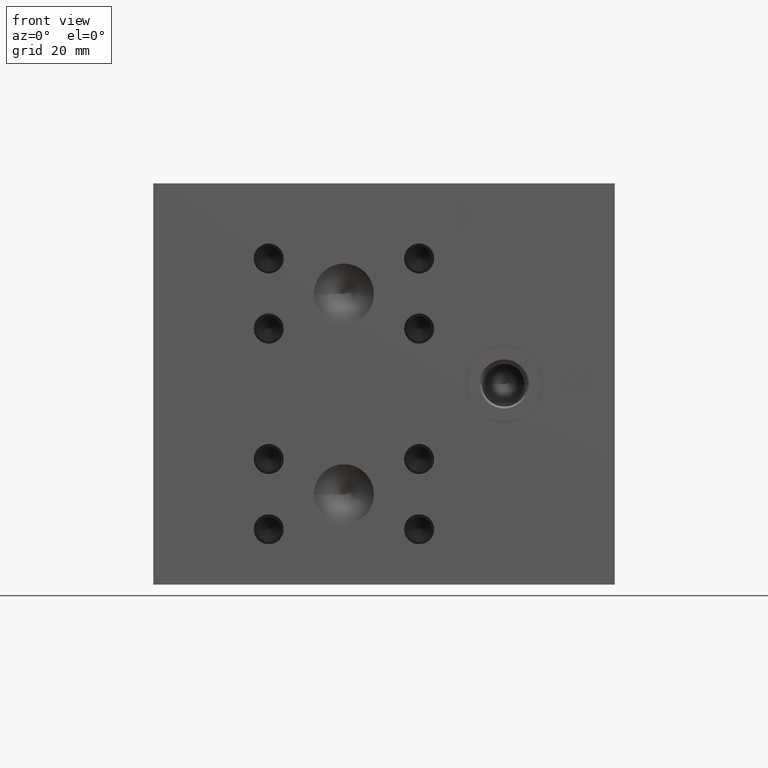
[diagram: clean part render]
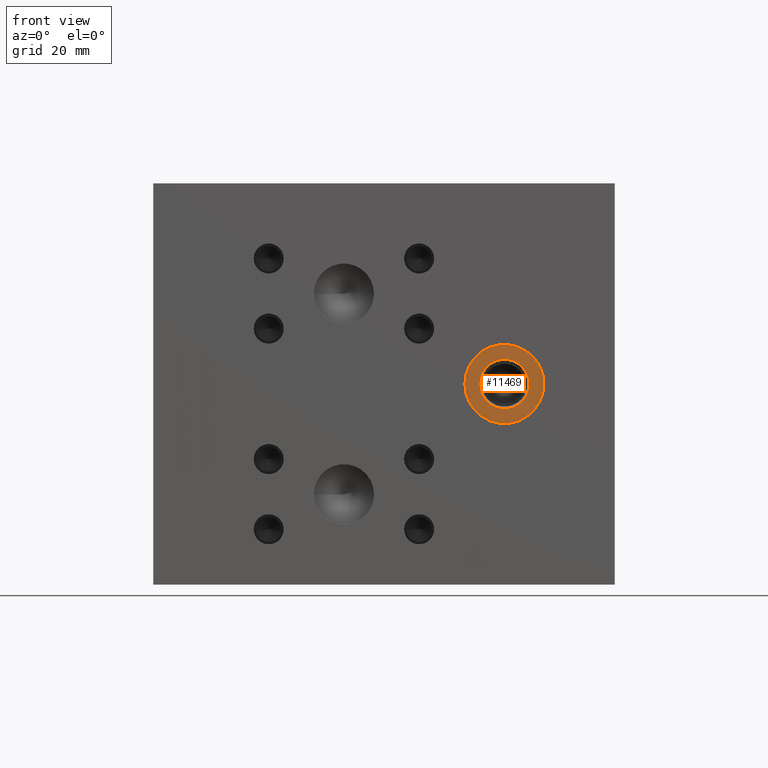
[diagram: same view with one face highlighted and labeled with its STEP entity id]
A machine part, front view. The second image highlights one B-rep face of the part: STEP entity #11469.
In plain terms, the highlighted planar face has unit normal (0, 1, 0).
Its self-contained STEP definition (entity closure, byte-faithful):
#238=CIRCLE('',#12059,12.5095);
#239=CIRCLE('',#12060,12.5095);
#240=CIRCLE('',#12062,7.79780000000001);
#241=CIRCLE('',#12063,7.79780000000001);
#502=FACE_BOUND('',#2022,.T.);
#856=PLANE('',#12061);
#1345=FACE_OUTER_BOUND('',#2021,.T.);
#2021=EDGE_LOOP('',(#9803,#9804));
#2022=EDGE_LOOP('',(#9805,#9806));
#5476=VERTEX_POINT('',#19174);
#5477=VERTEX_POINT('',#19176);
#5478=VERTEX_POINT('',#19180);
#5479=VERTEX_POINT('',#19181);
#6998=EDGE_CURVE('',#5476,#5477,#238,.T.);
#6999=EDGE_CURVE('',#5477,#5476,#239,.T.);
#7000=EDGE_CURVE('',#5478,#5479,#240,.T.);
#7001=EDGE_CURVE('',#5479,#5478,#241,.T.);
#9803=ORIENTED_EDGE('',*,*,#6999,.F.);
#9804=ORIENTED_EDGE('',*,*,#6998,.F.);
#9805=ORIENTED_EDGE('',*,*,#7000,.T.);
#9806=ORIENTED_EDGE('',*,*,#7001,.T.);
#11469=ADVANCED_FACE('',(#1345,#502),#856,.F.);
#12059=AXIS2_PLACEMENT_3D('',#19177,#14218,#14219);
#12060=AXIS2_PLACEMENT_3D('',#19178,#14220,#14221);
#12061=AXIS2_PLACEMENT_3D('',#19179,#14222,#14223);
#12062=AXIS2_PLACEMENT_3D('',#19182,#14224,#14225);
#12063=AXIS2_PLACEMENT_3D('',#19183,#14226,#14227);
#14218=DIRECTION('center_axis',(0.,1.,0.));
#14219=DIRECTION('ref_axis',(1.,0.,0.));
#14220=DIRECTION('center_axis',(0.,1.,0.));
#14221=DIRECTION('ref_axis',(1.,0.,0.));
#14222=DIRECTION('center_axis',(0.,1.,0.));
#14223=DIRECTION('ref_axis',(0.,0.,1.));
#14224=DIRECTION('center_axis',(0.,1.,0.));
#14225=DIRECTION('ref_axis',(1.,0.,0.));
#14226=DIRECTION('center_axis',(0.,1.,0.));
#14227=DIRECTION('ref_axis',(1.,0.,0.));
#19174=CARTESIAN_POINT('',(98.6155,0.7874,63.5));
#19176=CARTESIAN_POINT('',(123.6345,0.7874,63.5));
#19177=CARTESIAN_POINT('Origin',(111.125,0.7874,63.5));
#19178=CARTESIAN_POINT('Origin',(111.125,0.7874,63.5));
#19179=CARTESIAN_POINT('Origin',(118.9228,0.7874,63.5));
#19180=CARTESIAN_POINT('',(118.9228,0.7874,63.5));
#19181=CARTESIAN_POINT('',(103.3272,0.787399999999998,63.5));
#19182=CARTESIAN_POINT('Origin',(111.125,0.7874,63.5));
#19183=CARTESIAN_POINT('Origin',(111.125,0.7874,63.5));